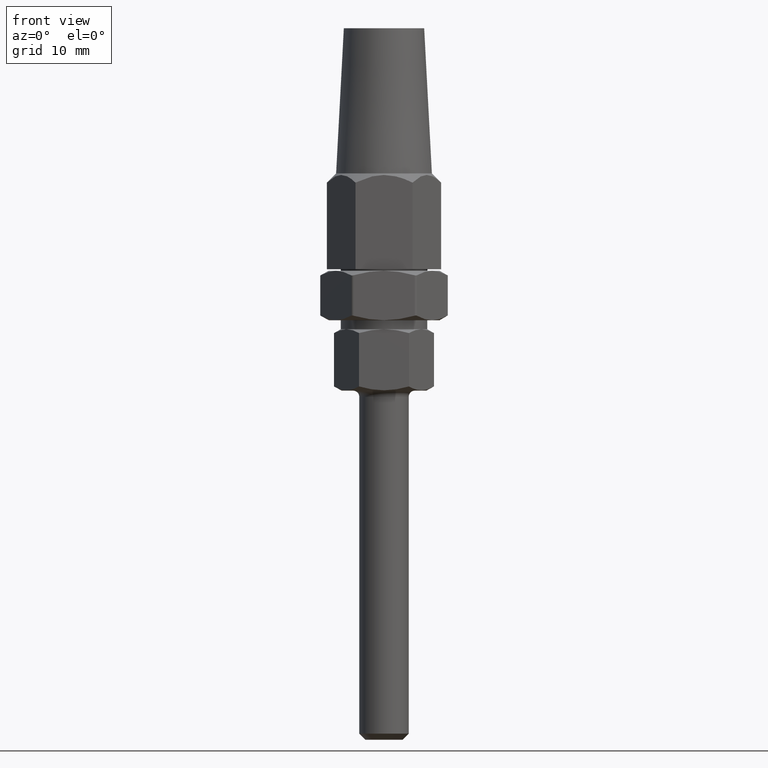
[diagram: clean part render]
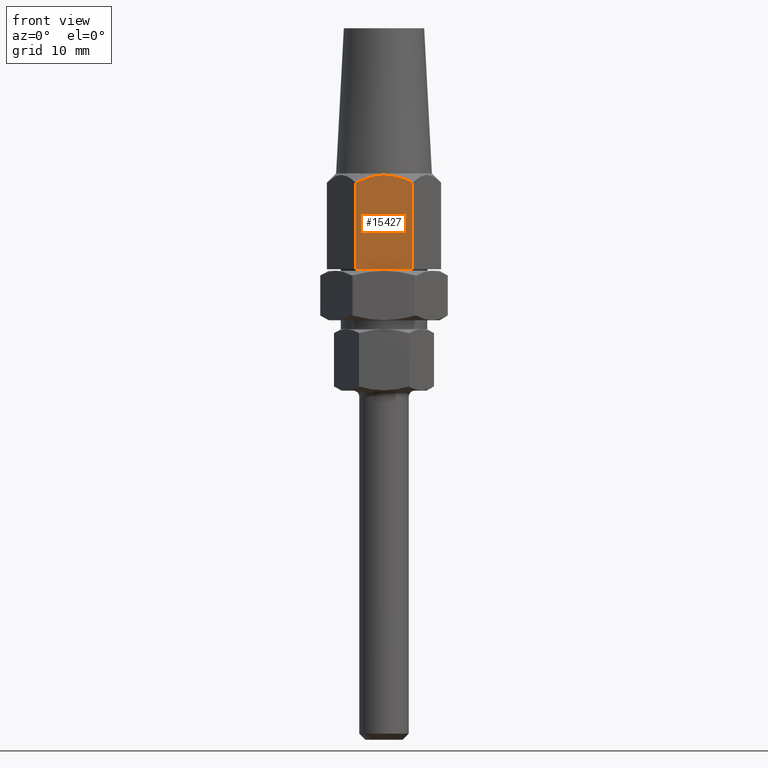
[diagram: same view with one face highlighted and labeled with its STEP entity id]
A machine part, front view. The second image highlights one B-rep face of the part: STEP entity #15427.
In plain terms, the highlighted planar face has unit normal (0, 1, 0).
Its self-contained STEP definition (entity closure, byte-faithful):
#390 = LINE ( 'NONE', #17402, #8482 ) ;
#536 = ORIENTED_EDGE ( 'NONE', *, *, #10090, .F. ) ;
#813 = CARTESIAN_POINT ( 'NONE',  ( -4.618802153517004100, -8.000000000000000000, 0.0000000000000000000 ) ) ;
#866 = CARTESIAN_POINT ( 'NONE',  ( -4.618802153517004100, -8.000000000000000000, 14.01239569296600400 ) ) ;
#1448 = ORIENTED_EDGE ( 'NONE', *, *, #14429, .F. ) ;
#1969 = DIRECTION ( 'NONE',  ( 0.0000000000000000000, -0.0000000000000000000, 1.000000000000000000 ) ) ;
#2015 = EDGE_CURVE ( 'NONE', #12701, #3667, #390, .T. ) ;
#2198 = CARTESIAN_POINT ( 'NONE',  ( 1.603663895284767300, -8.000000000000000000, 15.12467631584186200 ) ) ;
#2330 = CARTESIAN_POINT ( 'NONE',  ( 4.261393135430405500, -8.000000000000000000, 14.19110020200930800 ) ) ;
#2393 = CARTESIAN_POINT ( 'NONE',  ( 2.765096951514613100, -8.000000000000003600, 14.79375686713653200 ) ) ;
#2486 = CARTESIAN_POINT ( 'NONE',  ( 4.618802153517007600, -8.000000000000000000, 14.01239569296600300 ) ) ;
#2543 = CARTESIAN_POINT ( 'NONE',  ( -4.618802153517004100, -8.000000000000000000, 0.0000000000000000000 ) ) ;
#2889 = VECTOR ( 'NONE', #13574, 1000.000000000000000 ) ;
#3607 = ORIENTED_EDGE ( 'NONE', *, *, #2015, .T. ) ;
#3667 = VERTEX_POINT ( 'NONE', #813 ) ;
#3712 = CARTESIAN_POINT ( 'NONE',  ( 3.897114081797251400, -8.000000000000001800, 14.35783334541131300 ) ) ;
#4404 = PLANE ( 'NONE',  #7410 ) ;
#4783 = DIRECTION ( 'NONE',  ( 0.0000000000000000000, 1.000000000000000000, 0.0000000000000000000 ) ) ;
#5276 = CARTESIAN_POINT ( 'NONE',  ( -0.8070621912752501400, -8.000000000000001800, 15.21191026365274500 ) ) ;
#5341 = CARTESIAN_POINT ( 'NONE',  ( 4.618802153517007600, -8.000000000000000000, 14.01239569296600300 ) ) ;
#5873 = CARTESIAN_POINT ( 'NONE',  ( -4.618802153517004100, -8.000000000000000000, 15.50000000000000000 ) ) ;
#6676 = CARTESIAN_POINT ( 'NONE',  ( -3.901907008223540500, -8.000000000000000000, 14.37084326561273400 ) ) ;
#7410 = AXIS2_PLACEMENT_3D ( 'NONE', #5873, #4783, #1969 ) ;
#7741 = VERTEX_POINT ( 'NONE', #2486 ) ;
#8177 = CARTESIAN_POINT ( 'NONE',  ( 0.8137194574464252600, -8.000000000000003600, 15.24965790255126800 ) ) ;
#8312 = CARTESIAN_POINT ( 'NONE',  ( 3.150006993079941300, -8.000000000000000000, 14.65897714454854900 ) ) ;
#8482 = VECTOR ( 'NONE', #14599, 1000.000000000000000 ) ;
#9663 = CARTESIAN_POINT ( 'NONE',  ( -0.1992170192775318500, -8.000000000000000000, 15.25008463695903900 ) ) ;
#10090 = EDGE_CURVE ( 'NONE', #12701, #7741, #14916, .T. ) ;
#10810 = CARTESIAN_POINT ( 'NONE',  ( -4.618802153517004100, -8.000000000000000000, 14.01239569296600400 ) ) ;
#11112 = CARTESIAN_POINT ( 'NONE',  ( -1.992580600150512400, -8.000000000000001800, 15.01384934340876000 ) ) ;
#12460 = LINE ( 'NONE', #2543, #14834 ) ;
#12642 = CARTESIAN_POINT ( 'NONE',  ( 4.618802153517007600, -8.000000000000000000, 0.0000000000000000000 ) ) ;
#12701 = VERTEX_POINT ( 'NONE', #10810 ) ;
#12809 = VERTEX_POINT ( 'NONE', #12642 ) ;
#12845 = EDGE_CURVE ( 'NONE', #3667, #12809, #12460, .T. ) ;
#12877 = CARTESIAN_POINT ( 'NONE',  ( -1.602227991556808500, -8.000000000000000000, 15.10057083827843100 ) ) ;
#13496 = EDGE_LOOP ( 'NONE', ( #536, #3607, #14961, #1448 ) ) ;
#13574 = DIRECTION ( 'NONE',  ( -0.0000000000000000000, -0.0000000000000000000, -1.000000000000000000 ) ) ;
#14193 = CARTESIAN_POINT ( 'NONE',  ( -1.007058643919992000, -8.000000000000000000, 15.18925050671208900 ) ) ;
#14429 = EDGE_CURVE ( 'NONE', #7741, #12809, #18256, .T. ) ;
#14599 = DIRECTION ( 'NONE',  ( -0.0000000000000000000, -0.0000000000000000000, -1.000000000000000000 ) ) ;
#14602 = DIRECTION ( 'NONE',  ( 1.000000000000000000, 0.0000000000000000000, 0.0000000000000000000 ) ) ;
#14834 = VECTOR ( 'NONE', #14602, 1000.000000000000000 ) ;
#14916 = B_SPLINE_CURVE_WITH_KNOTS ( 'NONE', 3,
 ( #866, #6676, #17129, #11112, #12877, #14193, #5276, #17261, #9663, #8177, #2198, #2393, #8312, #3712, #2330, #5341 ),
 .UNSPECIFIED., .F., .F.,
 ( 4, 2, 2, 2, 2, 2, 2, 4 ),
 ( 0.008459122492967723400, 0.01084530701454843700, 0.01203839927533879500, 0.01263494540573397200, 0.01323149153612915300, 0.01561767605770986700, 0.01681076831850022300, 0.01800386057929058400 ),
 .UNSPECIFIED. ) ;
#14961 = ORIENTED_EDGE ( 'NONE', *, *, #12845, .T. ) ;
#15427 = ADVANCED_FACE ( 'NONE', ( #15715 ), #4404, .F. ) ;
#15715 = FACE_OUTER_BOUND ( 'NONE', #13496, .T. ) ;
#17129 = CARTESIAN_POINT ( 'NONE',  ( -3.147599742753596400, -7.999999999999998200, 14.68480386094567100 ) ) ;
#17261 = CARTESIAN_POINT ( 'NONE',  ( -0.4036049393148719600, -8.000000000000001800, 15.24235152020117400 ) ) ;
#17402 = CARTESIAN_POINT ( 'NONE',  ( -4.618802153517004100, -8.000000000000000000, 15.50000000000000000 ) ) ;
#18170 = CARTESIAN_POINT ( 'NONE',  ( 4.618802153517007600, -8.000000000000000000, 15.50000000000000000 ) ) ;
#18256 = LINE ( 'NONE', #18170, #2889 ) ;